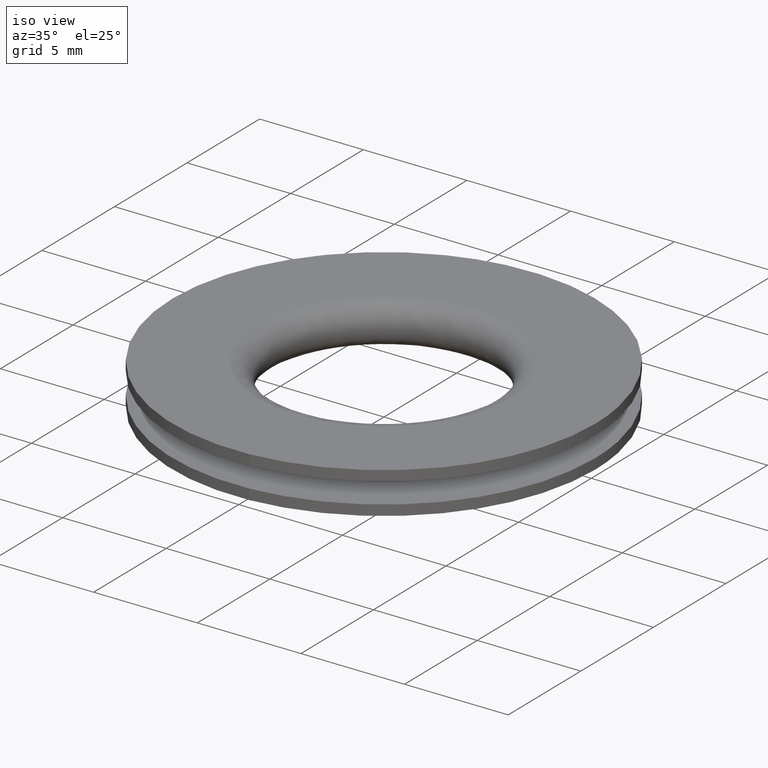
[diagram: clean part render]
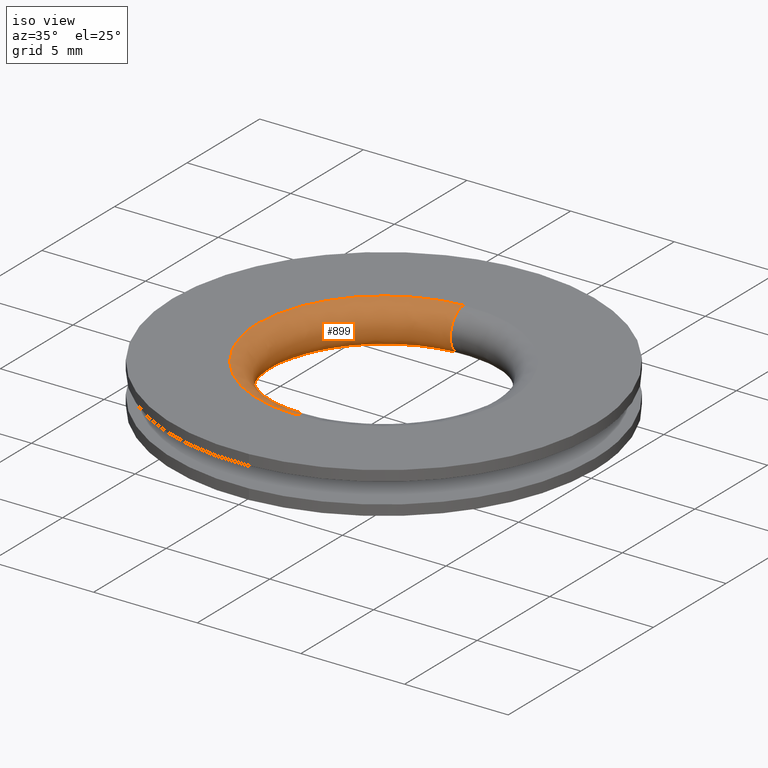
[diagram: same view with one face highlighted and labeled with its STEP entity id]
A machine part, iso view. The second image highlights one B-rep face of the part: STEP entity #899.
In plain terms, the highlighted face is a freeform B-spline surface patch.
Its self-contained STEP definition (entity closure, byte-faithful):
#701=CARTESIAN_POINT('',(-0.425372904353581,6.085151607931982,-3.400121E-015));
#702=VERTEX_POINT('',#701);
#720=CARTESIAN_POINT('',(0.076651926671425,-6.099521109366961,2.982552E-012));
#721=VERTEX_POINT('',#720);
#735=CARTESIAN_POINT('',(0.076651926034370,-6.099521031390859,1.999999999997277));
#736=VERTEX_POINT('',#735);
#737=CARTESIAN_POINT('',(0.076651926671425,-6.099521109366960,2.982552E-012));
#738=CARTESIAN_POINT('',(0.064086815971139,-5.099598325360505,-0.000001727990614));
#739=CARTESIAN_POINT('',(0.064086815971139,-5.099598325360504,1.000000000000000));
#740=CARTESIAN_POINT('',(0.064086815971139,-5.099598325360503,2.000001650012533));
#741=CARTESIAN_POINT('',(0.076651926034370,-6.099521031390859,1.999999999997277));
#749=(BOUNDED_CURVE()B_SPLINE_CURVE(2,(#737,#738,#739,#740,#741),.UNSPECIFIED.,.F.,.U.)B_SPLINE_CURVE_WITH_KNOTS((3,2,3),(-3.781084636561039,-2.0,-0.218915458166243),.UNSPECIFIED.)CURVE()GEOMETRIC_REPRESENTATION_ITEM()RATIONAL_B_SPLINE_CURVE((0.930396719307059,0.682053924404680,1.0,0.682053941314695,0.930396692890755))REPRESENTATION_ITEM(''));
#750=EDGE_CURVE('',#721,#736,#749,.T.);
#767=CARTESIAN_POINT('',(-0.425372904353591,6.085151607931273,2.0));
#768=VERTEX_POINT('',#767);
#784=CARTESIAN_POINT('',(-0.425372904353581,6.085151607931983,-3.400121E-015));
#785=CARTESIAN_POINT('',(-0.355639652768008,5.087585934151877,1.189527E-010));
#786=CARTESIAN_POINT('',(-0.355639652768008,5.087585934151877,1.000000000000000));
#787=CARTESIAN_POINT('',(-0.355639652768008,5.087585934151877,1.999999999879637));
#788=CARTESIAN_POINT('',(-0.425372904353591,6.085151607931274,2.0));
#796=(BOUNDED_CURVE()B_SPLINE_CURVE(2,(#784,#785,#786,#787,#788),.UNSPECIFIED.,.F.,.U.)B_SPLINE_CURVE_WITH_KNOTS((3,2,3),(-3.781082537263329,-2.0,-0.218917462738385),.UNSPECIFIED.)CURVE()GEOMETRIC_REPRESENTATION_ITEM()RATIONAL_B_SPLINE_CURVE((0.909467617908144,0.666712033882053,0.977505800795127,0.666712033882352,0.909467617907677))REPRESENTATION_ITEM(''));
#797=EDGE_CURVE('',#702,#768,#796,.T.);
#802=CARTESIAN_POINT('',(0.078436538622470,-6.241452862728522,0.010125410976729));
#803=CARTESIAN_POINT('',(-6.163016324106052,-6.319889401350994,0.010125410976729));
#804=CARTESIAN_POINT('',(-6.241452862728522,-0.078436538622471,0.010125410976729));
#805=CARTESIAN_POINT('',(-6.315524677790562,5.815700942273756,0.010125410976729));
#806=CARTESIAN_POINT('',(-0.435271169854685,6.226750768815665,0.010125410976729));
#807=CARTESIAN_POINT('',(0.064086815971139,-5.099598325360505,-0.153625634180411));
#808=CARTESIAN_POINT('',(-5.035511509389366,-5.163685141331643,-0.153625634180411));
#809=CARTESIAN_POINT('',(-5.099598325360505,-0.064086815971140,-0.153625634180411));
#810=CARTESIAN_POINT('',(-5.160118930475139,4.751736404695291,-0.153625634180411));
#811=CARTESIAN_POINT('',(-0.355639652768008,5.087585934151879,-0.153625634180411));
#812=CARTESIAN_POINT('',(0.064086815971139,-5.099598325360504,1.000000000000000));
#813=CARTESIAN_POINT('',(-5.035511509389366,-5.163685141331643,1.000000000000000));
#814=CARTESIAN_POINT('',(-5.099598325360504,-0.064086815971140,1.000000000000000));
#815=CARTESIAN_POINT('',(-5.160118930475138,4.751736404695293,1.000000000000000));
#816=CARTESIAN_POINT('',(-0.355639652768008,5.087585934151877,1.000000000000000));
#817=CARTESIAN_POINT('',(0.064086815971139,-5.099598325360505,2.153625566710612));
#818=CARTESIAN_POINT('',(-5.035511509389364,-5.163685141331643,2.153625566710612));
#819=CARTESIAN_POINT('',(-5.099598325360505,-0.064086815971140,2.153625566710612));
#820=CARTESIAN_POINT('',(-5.160118930475135,4.751736404695293,2.153625566710612));
#821=CARTESIAN_POINT('',(-0.355639652768008,5.087585934151877,2.153625566710612));
#822=CARTESIAN_POINT('',(0.078436537902353,-6.241452805426417,1.989874597240848));
#823=CARTESIAN_POINT('',(-6.163016267524061,-6.319889343328769,1.989874597240848));
#824=CARTESIAN_POINT('',(-6.241452805426417,-0.078436537902353,1.989874597240848));
#825=CARTESIAN_POINT('',(-6.315524619808411,5.815700888880435,1.989874597240849));
#826=CARTESIAN_POINT('',(-0.435271165858508,6.226750711648537,1.989874597240849));
#834=(BOUNDED_SURFACE()B_SPLINE_SURFACE(2,2,((#802,#807,#812,#817,#822),(#803,#808,#813,#818,#823),(#804,#809,#814,#819,#824),(#805,#810,#815,#820,#825),(#806,#811,#816,#821,#826)),.UNSPECIFIED.,.F.,.F.,.U.)B_SPLINE_SURFACE_WITH_KNOTS((3,2,3),(3,2,3),(0.0,10.341994259008979,20.270308747657602),(0.0,1.826258141626809,3.652516213796863),.UNSPECIFIED.)GEOMETRIC_REPRESENTATION_ITEM()RATIONAL_B_SPLINE_SURFACE(((0.985667229528787,0.650291084753556,1.0,0.650291098053783,0.985667204018551),(0.696971981993162,0.459825235774396,0.707106781186548,0.459825245179076,0.696971963954702),(0.985667229528787,0.650291084753556,1.0,0.650291098053783,0.985667204018551),(0.708519791894587,0.467443869733562,0.718822509939086,0.467443879294064,0.708519773557256),(0.963495434518051,0.635663307551957,0.977505800795127,0.635663320553005,0.963495409581647)))REPRESENTATION_ITEM('')SURFACE());
#835=CARTESIAN_POINT('',(-6.100001000000000,0.0,-7.105427E-015));
#836=VERTEX_POINT('',#835);
#837=CARTESIAN_POINT('',(-6.100001000000000,0.0,-7.105427E-015));
#838=CARTESIAN_POINT('',(-6.100001000000001,5.688475700836464,-7.105427E-015));
#839=CARTESIAN_POINT('',(-0.425372904353581,6.085151607931982,-3.400121E-015));
#847=(BOUNDED_CURVE()B_SPLINE_CURVE(2,(#837,#838,#839),.UNSPECIFIED.,.F.,.U.)B_SPLINE_CURVE_WITH_KNOTS((3,3),(0.0,0.237833686534327),.UNSPECIFIED.)CURVE()GEOMETRIC_REPRESENTATION_ITEM()RATIONAL_B_SPLINE_CURVE((1.0,0.721360504034765,0.972879876385359))REPRESENTATION_ITEM(''));
#848=EDGE_CURVE('',#836,#702,#847,.T.);
#849=ORIENTED_EDGE('',*,*,#848,.T.);
#850=ORIENTED_EDGE('',*,*,#797,.T.);
#851=CARTESIAN_POINT('',(-6.100001000000000,0.0,2.0));
#852=VERTEX_POINT('',#851);
#853=CARTESIAN_POINT('',(-6.100001000000000,0.0,2.0));
#854=CARTESIAN_POINT('',(-6.100001000000002,5.688475700836355,1.999999999999999));
#855=CARTESIAN_POINT('',(-0.425372904353591,6.085151607931273,2.000000000000000));
#863=(BOUNDED_CURVE()B_SPLINE_CURVE(2,(#853,#854,#855),.UNSPECIFIED.,.F.,.U.)B_SPLINE_CURVE_WITH_KNOTS((3,3),(0.0,0.237833686534324),.UNSPECIFIED.)CURVE()GEOMETRIC_REPRESENTATION_ITEM()RATIONAL_B_SPLINE_CURVE((1.0,0.721360504034769,0.972879876385352))REPRESENTATION_ITEM(''));
#864=EDGE_CURVE('',#852,#768,#863,.T.);
#865=ORIENTED_EDGE('',*,*,#864,.F.);
#866=CARTESIAN_POINT('',(0.076651926034370,-6.099521031390860,1.999999999997278));
#867=CARTESIAN_POINT('',(0.038327486370042,-6.100002644762438,1.999999999997286));
#868=CARTESIAN_POINT('',(0.000000020604387,-6.100002639579179,1.999999999997294));
#869=CARTESIAN_POINT('',(-6.100000989762539,-6.100001814638698,1.999999999998656));
#870=CARTESIAN_POINT('',(-6.100001000000000,0.0,2.0));
#878=(BOUNDED_CURVE()B_SPLINE_CURVE(2,(#866,#867,#868,#869,#870),.UNSPECIFIED.,.F.,.U.)B_SPLINE_CURVE_WITH_KNOTS((3,2,3),(0.747784323328991,0.750000000000000,1.0),.UNSPECIFIED.)CURVE()GEOMETRIC_REPRESENTATION_ITEM()RATIONAL_B_SPLINE_CURVE((0.994854358724905,0.997404173311913,1.0,0.707106781186548,1.0))REPRESENTATION_ITEM(''));
#879=EDGE_CURVE('',#736,#852,#878,.T.);
#880=ORIENTED_EDGE('',*,*,#879,.F.);
#881=ORIENTED_EDGE('',*,*,#750,.F.);
#882=CARTESIAN_POINT('',(0.076651926671425,-6.099521109366961,2.982552E-012));
#883=CARTESIAN_POINT('',(0.038327487175442,-6.100002722492336,2.973277E-012));
#884=CARTESIAN_POINT('',(0.000000021578133,-6.100002717064122,2.963885E-012));
#885=CARTESIAN_POINT('',(-6.100000989278725,-6.100001853137742,1.469056E-012));
#886=CARTESIAN_POINT('',(-6.100001000000000,0.0,-7.105427E-015));
#894=(BOUNDED_CURVE()B_SPLINE_CURVE(2,(#882,#883,#884,#885,#886),.UNSPECIFIED.,.F.,.U.)B_SPLINE_CURVE_WITH_KNOTS((3,2,3),(0.747784323338875,0.750000000000000,1.0),.UNSPECIFIED.)CURVE()GEOMETRIC_REPRESENTATION_ITEM()RATIONAL_B_SPLINE_CURVE((0.994854358747655,0.997404173323494,1.0,0.707106781186548,1.0))REPRESENTATION_ITEM(''));
#895=EDGE_CURVE('',#721,#836,#894,.T.);
#896=ORIENTED_EDGE('',*,*,#895,.T.);
#897=EDGE_LOOP('',(#849,#850,#865,#880,#881,#896));
#898=FACE_OUTER_BOUND('',#897,.T.);
#899=ADVANCED_FACE('',(#898),#834,.T.);